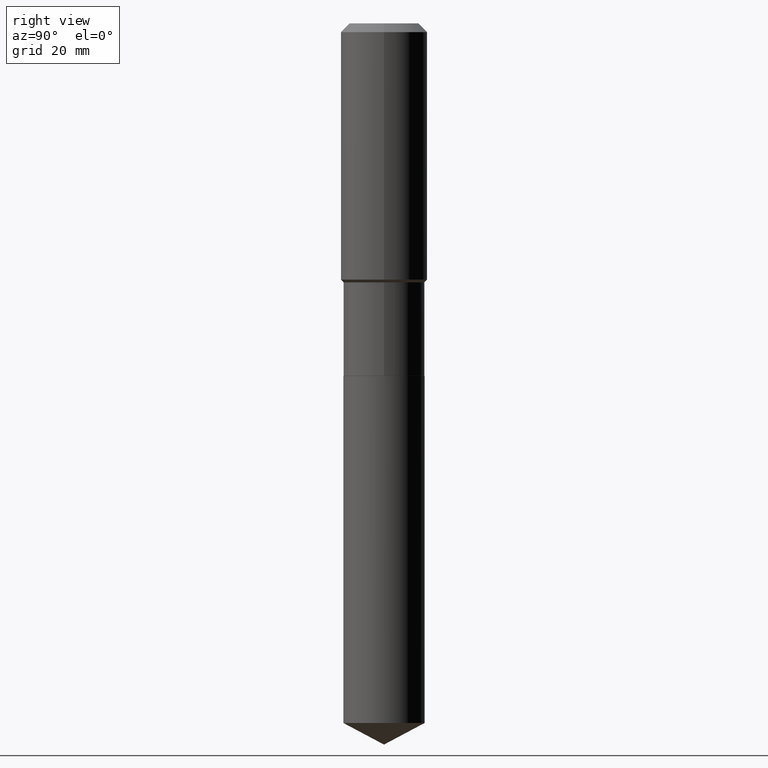
[diagram: clean part render]
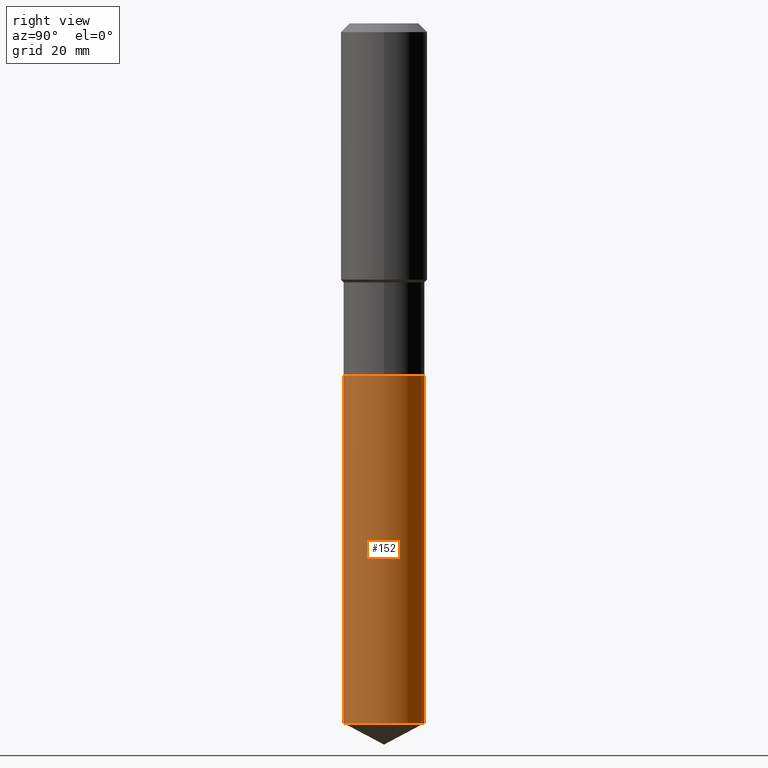
[diagram: same view with one face highlighted and labeled with its STEP entity id]
A machine part, right view. The second image highlights one B-rep face of the part: STEP entity #152.
In plain terms, the highlighted cylindrical surface (partial cylindrical patch) has radius 7.5006 mm, axis along (-0, 0, 1).
Its self-contained STEP definition (entity closure, byte-faithful):
#2 = ORIENTED_EDGE ( 'NONE', *, *, #388, .F. ) ;
#4 = VERTEX_POINT ( 'NONE', #316 ) ;
#15 = FACE_OUTER_BOUND ( 'NONE', #170, .T. ) ;
#16 = EDGE_CURVE ( 'NONE', #4, #154, #210, .T. ) ;
#24 = LINE ( 'NONE', #70, #36 ) ;
#36 = VECTOR ( 'NONE', #441, 39.37007874015748143 ) ;
#70 = CARTESIAN_POINT ( 'NONE',  ( 2.098232698699638218E-15, 0.2952999999999910696, -2.559100000000001263 ) ) ;
#89 = AXIS2_PLACEMENT_3D ( 'NONE', #120, #343, #153 ) ;
#94 = DIRECTION ( 'NONE',  ( -2.445325234365100300E-29, 3.491686941861038348E-15, 1.000000000000000000 ) ) ;
#96 = AXIS2_PLACEMENT_3D ( 'NONE', #248, #97, #134 ) ;
#97 = DIRECTION ( 'NONE',  ( -2.445325234365100300E-29, 3.491686941861038348E-15, 1.000000000000000000 ) ) ;
#120 = CARTESIAN_POINT ( 'NONE',  ( 1.242062961135545756E-28, -1.773440198800382696E-14, -5.079186204830366869 ) ) ;
#134 = DIRECTION ( 'NONE',  ( -6.982962677686266711E-15, -1.000000000000000000, 3.700437512582815297E-15 ) ) ;
#143 = CARTESIAN_POINT ( 'NONE',  ( 2.098232698699700538E-15, 0.2952999999999824099, -5.079186204830368645 ) ) ;
#152 = ADVANCED_FACE ( 'NONE', ( #15 ), #165, .T. ) ;
#153 = DIRECTION ( 'NONE',  ( -6.982962677686266711E-15, -1.000000000000000000, 3.700437512582815297E-15 ) ) ;
#154 = VERTEX_POINT ( 'NONE', #355 ) ;
#165 = CYLINDRICAL_SURFACE ( 'NONE', #345, 0.2953000000000000069 ) ;
#169 = VERTEX_POINT ( 'NONE', #143 ) ;
#170 = EDGE_LOOP ( 'NONE', ( #418, #339, #229, #2 ) ) ;
#204 = CARTESIAN_POINT ( 'NONE',  ( 6.258199221908382824E-29, -8.935049894233495342E-15, -2.559099999999999930 ) ) ;
#205 = EDGE_CURVE ( 'NONE', #169, #154, #24, .T. ) ;
#210 = CIRCLE ( 'NONE', #96, 0.2953000000000000069 ) ;
#226 = DIRECTION ( 'NONE',  ( -2.445325234365100300E-29, 3.491686941861038743E-15, 1.000000000000000000 ) ) ;
#229 = ORIENTED_EDGE ( 'NONE', *, *, #16, .F. ) ;
#232 = CARTESIAN_POINT ( 'NONE',  ( -2.062068878720631106E-15, -0.2953000000000178260, -5.079186204830365980 ) ) ;
#243 = DIRECTION ( 'NONE',  ( -6.982962677686266711E-15, -1.000000000000000000, 3.700437512582815297E-15 ) ) ;
#248 = CARTESIAN_POINT ( 'NONE',  ( 6.258199221908382824E-29, -8.935049894233495342E-15, -2.559099999999999930 ) ) ;
#304 = CARTESIAN_POINT ( 'NONE',  ( -2.062068878720691848E-15, -0.2953000000000089442, -2.559099999999999042 ) ) ;
#316 = CARTESIAN_POINT ( 'NONE',  ( -2.062068878720691848E-15, -0.2953000000000089442, -2.559099999999999042 ) ) ;
#317 = VECTOR ( 'NONE', #226, 39.37007874015748143 ) ;
#339 = ORIENTED_EDGE ( 'NONE', *, *, #205, .T. ) ;
#343 = DIRECTION ( 'NONE',  ( -2.445325234365100300E-29, 3.491686941861038348E-15, 1.000000000000000000 ) ) ;
#345 = AXIS2_PLACEMENT_3D ( 'NONE', #204, #94, #243 ) ;
#355 = CARTESIAN_POINT ( 'NONE',  ( 2.098232698699700538E-15, 0.2952999999999910696, -2.559100000000001263 ) ) ;
#361 = CIRCLE ( 'NONE', #89, 0.2953000000000000069 ) ;
#388 = EDGE_CURVE ( 'NONE', #481, #4, #414, .T. ) ;
#414 = LINE ( 'NONE', #304, #317 ) ;
#418 = ORIENTED_EDGE ( 'NONE', *, *, #475, .T. ) ;
#441 = DIRECTION ( 'NONE',  ( -2.445325234365100300E-29, 3.491686941861038743E-15, 1.000000000000000000 ) ) ;
#475 = EDGE_CURVE ( 'NONE', #481, #169, #361, .T. ) ;
#481 = VERTEX_POINT ( 'NONE', #232 ) ;